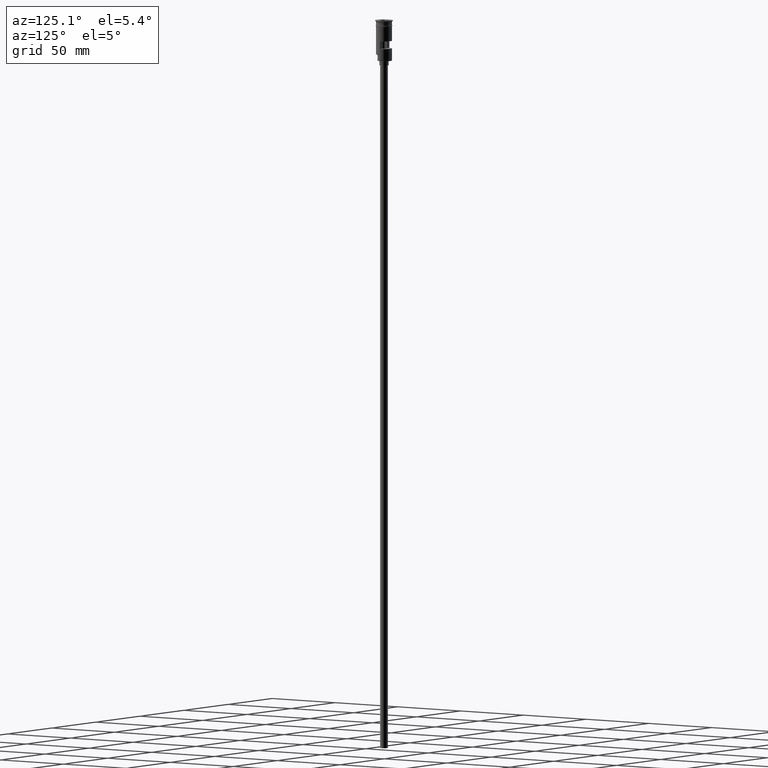
[diagram: clean part render]
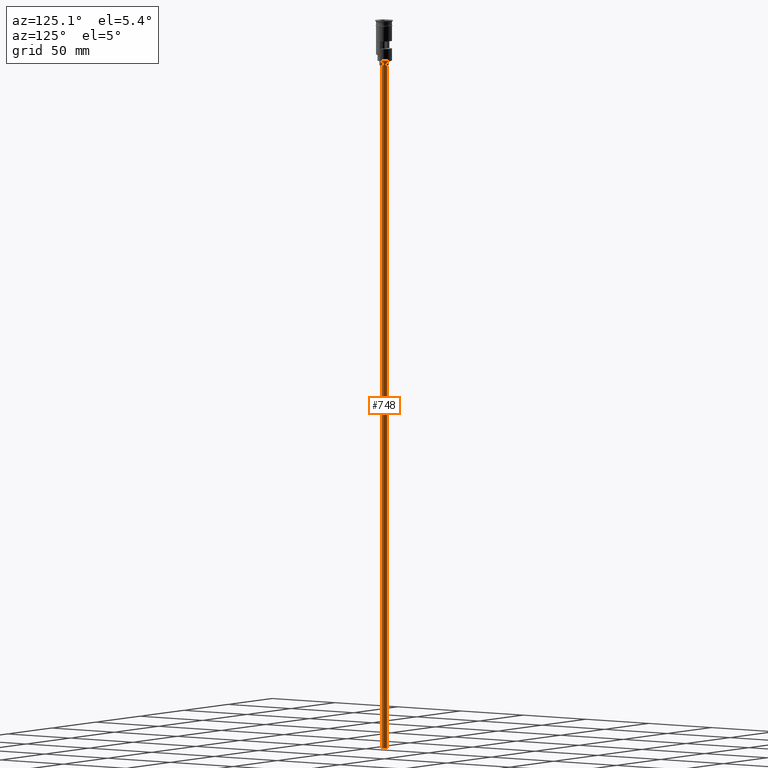
[diagram: same view with one face highlighted and labeled with its STEP entity id]
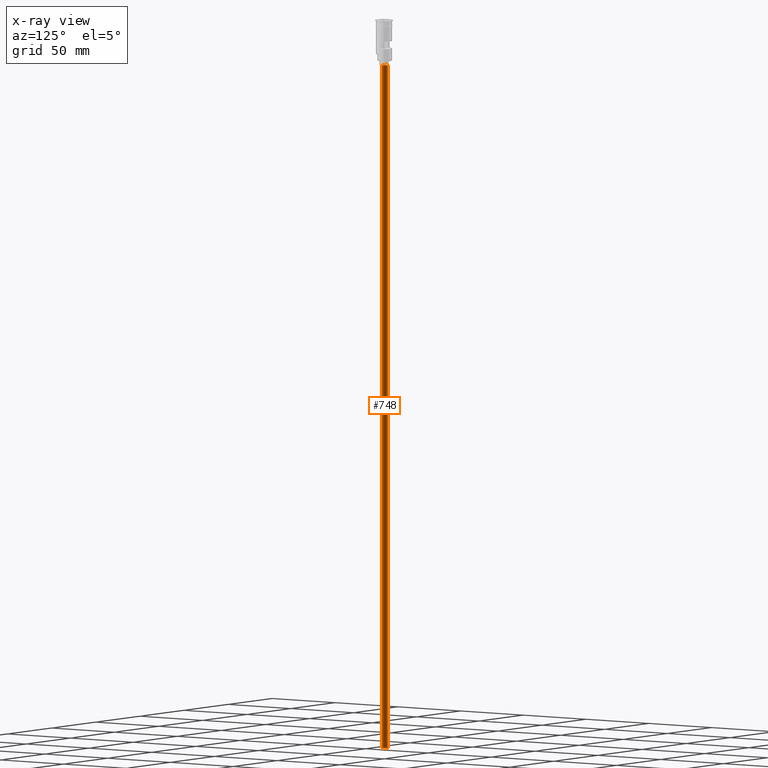
[diagram: x-ray of the same camera — body ghosted, the highlighted face saturated]
A machine part, auxiliary view. The second image highlights one B-rep face of the part: STEP entity #748.
The next image is the same camera in x-ray: the body ghosted, the highlighted face saturated — about 0% of this face is hidden behind the body in this view.
In plain terms, the highlighted cylindrical surface (edge-blend (fillet) strip) has radius 2.5 mm, axis along (-0, -0, 1).
Its self-contained STEP definition (entity closure, byte-faithful):
#8 = VECTOR ( 'NONE', #1455, 1000.000000000000000 ) ;
#63 = AXIS2_PLACEMENT_3D ( 'NONE', #840, #943, #230 ) ;
#78 = LINE ( 'NONE', #949, #8 ) ;
#140 = VECTOR ( 'NONE', #1197, 1000.000000000000000 ) ;
#230 = DIRECTION ( 'NONE',  ( 1.000000000000000000, 0.000000000000000000, 0.000000000000000000 ) ) ;
#313 = ORIENTED_EDGE ( 'NONE', *, *, #1139, .T. ) ;
#320 = EDGE_CURVE ( 'NONE', #915, #1161, #450, .T. ) ;
#353 = CARTESIAN_POINT ( 'NONE',  ( -2.500000000000000000, 3.061616997868383141E-16, -476.5000000000000568 ) ) ;
#450 = LINE ( 'NONE', #1223, #140 ) ;
#485 = CARTESIAN_POINT ( 'NONE',  ( -2.500000000000000000, 3.061616997868383141E-16, -29.50000000000000000 ) ) ;
#493 = ORIENTED_EDGE ( 'NONE', *, *, #1310, .T. ) ;
#502 = DIRECTION ( 'NONE',  ( 0.000000000000000000, 0.000000000000000000, -1.000000000000000000 ) ) ;
#549 = CIRCLE ( 'NONE', #573, 2.500000000000000000 ) ;
#573 = AXIS2_PLACEMENT_3D ( 'NONE', #1366, #502, #1600 ) ;
#625 = CARTESIAN_POINT ( 'NONE',  ( 2.500000000000000000, 0.000000000000000000, -476.5000000000000568 ) ) ;
#748 = ADVANCED_FACE ( 'NONE', ( #1089 ), #1196, .T. ) ;
#759 = DIRECTION ( 'NONE',  ( -1.000000000000000000, 0.000000000000000000, 0.000000000000000000 ) ) ;
#771 = ORIENTED_EDGE ( 'NONE', *, *, #320, .F. ) ;
#805 = VERTEX_POINT ( 'NONE', #353 ) ;
#840 = CARTESIAN_POINT ( 'NONE',  ( 0.000000000000000000, 0.000000000000000000, -476.5000000000000568 ) ) ;
#915 = VERTEX_POINT ( 'NONE', #625 ) ;
#932 = VERTEX_POINT ( 'NONE', #485 ) ;
#943 = DIRECTION ( 'NONE',  ( -0.000000000000000000, -0.000000000000000000, 1.000000000000000000 ) ) ;
#949 = CARTESIAN_POINT ( 'NONE',  ( -2.500000000000000000, 3.061616997868383141E-16, -476.5000000000000568 ) ) ;
#956 = CIRCLE ( 'NONE', #1236, 2.500000000000000000 ) ;
#1089 = FACE_OUTER_BOUND ( 'NONE', #1151, .T. ) ;
#1139 = EDGE_CURVE ( 'NONE', #805, #932, #78, .T. ) ;
#1151 = EDGE_LOOP ( 'NONE', ( #1447, #313, #493, #771 ) ) ;
#1161 = VERTEX_POINT ( 'NONE', #1438 ) ;
#1196 = CYLINDRICAL_SURFACE ( 'NONE', #63, 2.500000000000000000 ) ;
#1197 = DIRECTION ( 'NONE',  ( -0.000000000000000000, -0.000000000000000000, 1.000000000000000000 ) ) ;
#1223 = CARTESIAN_POINT ( 'NONE',  ( 2.500000000000000000, 0.000000000000000000, -476.5000000000000568 ) ) ;
#1236 = AXIS2_PLACEMENT_3D ( 'NONE', #1497, #1374, #759 ) ;
#1310 = EDGE_CURVE ( 'NONE', #932, #1161, #549, .T. ) ;
#1366 = CARTESIAN_POINT ( 'NONE',  ( 0.000000000000000000, 0.000000000000000000, -29.50000000000000000 ) ) ;
#1374 = DIRECTION ( 'NONE',  ( 0.000000000000000000, 0.000000000000000000, -1.000000000000000000 ) ) ;
#1412 = EDGE_CURVE ( 'NONE', #805, #915, #956, .T. ) ;
#1438 = CARTESIAN_POINT ( 'NONE',  ( 2.500000000000000000, 0.000000000000000000, -29.50000000000000000 ) ) ;
#1447 = ORIENTED_EDGE ( 'NONE', *, *, #1412, .F. ) ;
#1455 = DIRECTION ( 'NONE',  ( -0.000000000000000000, -0.000000000000000000, 1.000000000000000000 ) ) ;
#1497 = CARTESIAN_POINT ( 'NONE',  ( 0.000000000000000000, 0.000000000000000000, -476.5000000000000568 ) ) ;
#1600 = DIRECTION ( 'NONE',  ( -1.000000000000000000, 0.000000000000000000, 0.000000000000000000 ) ) ;